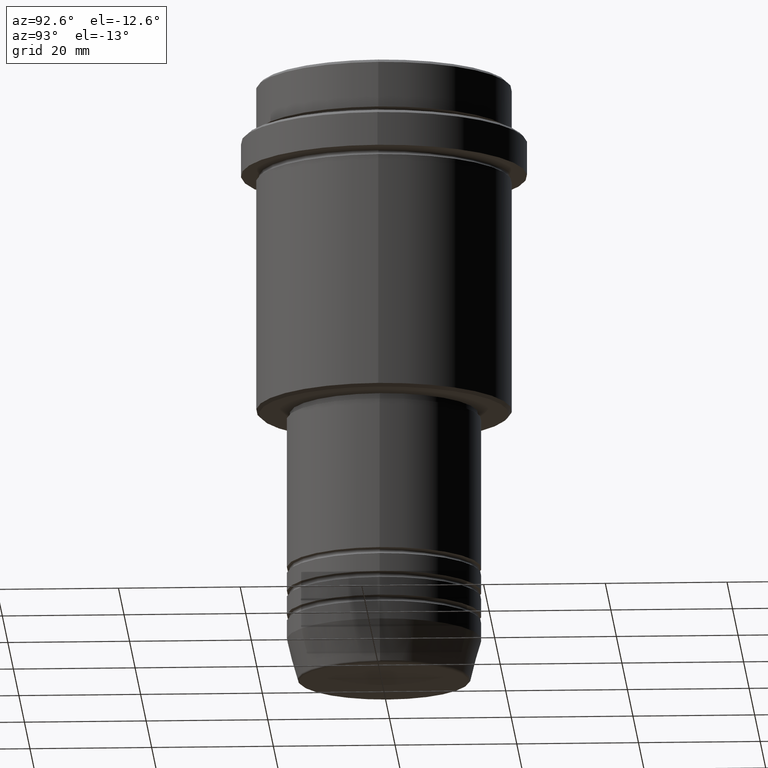
[diagram: clean part render]
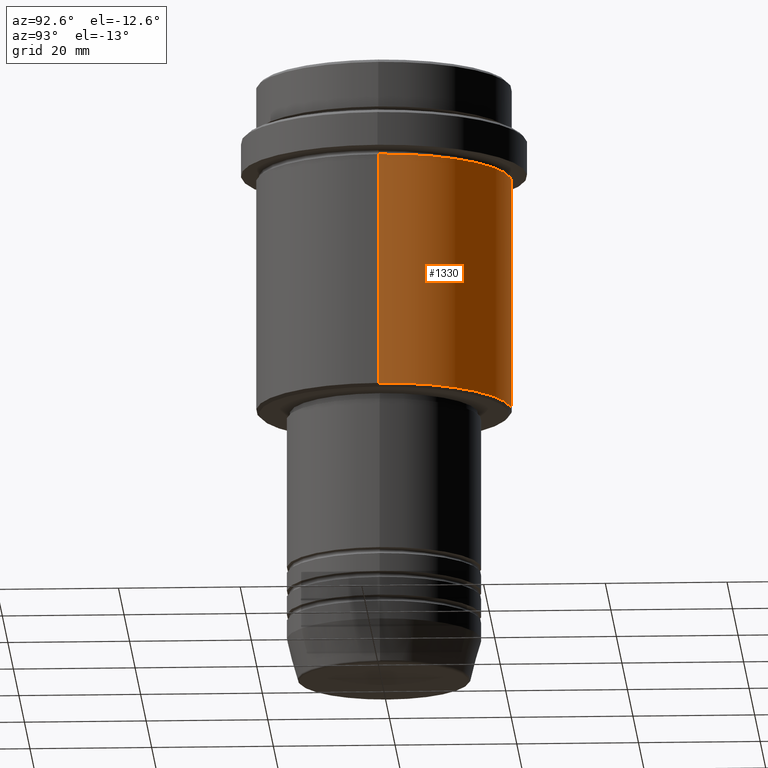
[diagram: same view with one face highlighted and labeled with its STEP entity id]
A machine part, auxiliary view. The second image highlights one B-rep face of the part: STEP entity #1330.
In plain terms, the highlighted cylindrical surface (partial cylindrical patch) has radius 21 mm, axis along (-0, -0, 1).
Its self-contained STEP definition (entity closure, byte-faithful):
#61 = AXIS2_PLACEMENT_3D ( 'NONE', #726, #616, #1146 ) ;
#79 = DIRECTION ( 'NONE',  ( -0.000000000000000000, -0.000000000000000000, 1.000000000000000000 ) ) ;
#116 = AXIS2_PLACEMENT_3D ( 'NONE', #1066, #79, #420 ) ;
#337 = EDGE_CURVE ( 'NONE', #928, #442, #669, .T. ) ;
#356 = CARTESIAN_POINT ( 'NONE',  ( -21.00000000000000000, 2.571758278209441661E-15, -16.00000000000000355 ) ) ;
#392 = CIRCLE ( 'NONE', #116, 21.00000000000000000 ) ;
#394 = LINE ( 'NONE', #1051, #1199 ) ;
#408 = CARTESIAN_POINT ( 'NONE',  ( 0.000000000000000000, 0.000000000000000000, 0.000000000000000000 ) ) ;
#420 = DIRECTION ( 'NONE',  ( 1.000000000000000000, 0.000000000000000000, 0.000000000000000000 ) ) ;
#430 = CYLINDRICAL_SURFACE ( 'NONE', #636, 21.00000000000000000 ) ;
#442 = VERTEX_POINT ( 'NONE', #932 ) ;
#479 = ORIENTED_EDGE ( 'NONE', *, *, #1189, .T. ) ;
#616 = DIRECTION ( 'NONE',  ( -0.000000000000000000, -0.000000000000000000, 1.000000000000000000 ) ) ;
#632 = EDGE_LOOP ( 'NONE', ( #802, #479, #748, #1074 ) ) ;
#636 = AXIS2_PLACEMENT_3D ( 'NONE', #408, #646, #984 ) ;
#646 = DIRECTION ( 'NONE',  ( -0.000000000000000000, -0.000000000000000000, 1.000000000000000000 ) ) ;
#669 = LINE ( 'NONE', #997, #797 ) ;
#726 = CARTESIAN_POINT ( 'NONE',  ( 0.000000000000000000, 0.000000000000000000, -54.49999999999999289 ) ) ;
#727 = VERTEX_POINT ( 'NONE', #356 ) ;
#748 = ORIENTED_EDGE ( 'NONE', *, *, #978, .F. ) ;
#752 = FACE_OUTER_BOUND ( 'NONE', #632, .T. ) ;
#765 = DIRECTION ( 'NONE',  ( -0.000000000000000000, -0.000000000000000000, 1.000000000000000000 ) ) ;
#796 = CIRCLE ( 'NONE', #61, 21.00000000000000000 ) ;
#797 = VECTOR ( 'NONE', #765, 1000.000000000000000 ) ;
#802 = ORIENTED_EDGE ( 'NONE', *, *, #1205, .T. ) ;
#849 = VERTEX_POINT ( 'NONE', #865 ) ;
#865 = CARTESIAN_POINT ( 'NONE',  ( -21.00000000000000000, 2.571758278209441661E-15, -54.49999999999999289 ) ) ;
#916 = CARTESIAN_POINT ( 'NONE',  ( 21.00000000000000000, 0.000000000000000000, -54.49999999999999289 ) ) ;
#928 = VERTEX_POINT ( 'NONE', #916 ) ;
#932 = CARTESIAN_POINT ( 'NONE',  ( 21.00000000000000000, 0.000000000000000000, -16.00000000000000355 ) ) ;
#978 = EDGE_CURVE ( 'NONE', #442, #727, #392, .T. ) ;
#984 = DIRECTION ( 'NONE',  ( 1.000000000000000000, 0.000000000000000000, 0.000000000000000000 ) ) ;
#997 = CARTESIAN_POINT ( 'NONE',  ( 21.00000000000000000, 0.000000000000000000, 0.000000000000000000 ) ) ;
#1051 = CARTESIAN_POINT ( 'NONE',  ( -21.00000000000000000, 2.571758278209441661E-15, 0.000000000000000000 ) ) ;
#1066 = CARTESIAN_POINT ( 'NONE',  ( 0.000000000000000000, 0.000000000000000000, -16.00000000000000355 ) ) ;
#1074 = ORIENTED_EDGE ( 'NONE', *, *, #337, .F. ) ;
#1146 = DIRECTION ( 'NONE',  ( -1.000000000000000000, 0.000000000000000000, 0.000000000000000000 ) ) ;
#1189 = EDGE_CURVE ( 'NONE', #849, #727, #394, .T. ) ;
#1199 = VECTOR ( 'NONE', #1369, 1000.000000000000000 ) ;
#1205 = EDGE_CURVE ( 'NONE', #928, #849, #796, .T. ) ;
#1330 = ADVANCED_FACE ( 'NONE', ( #752 ), #430, .T. ) ;
#1369 = DIRECTION ( 'NONE',  ( -0.000000000000000000, -0.000000000000000000, 1.000000000000000000 ) ) ;